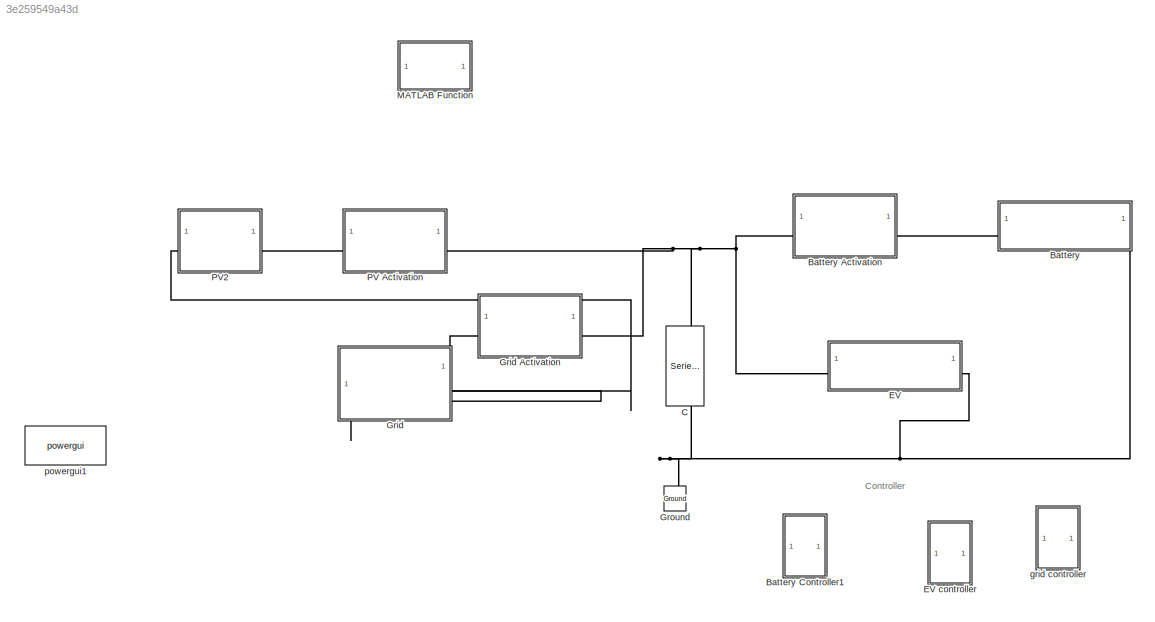
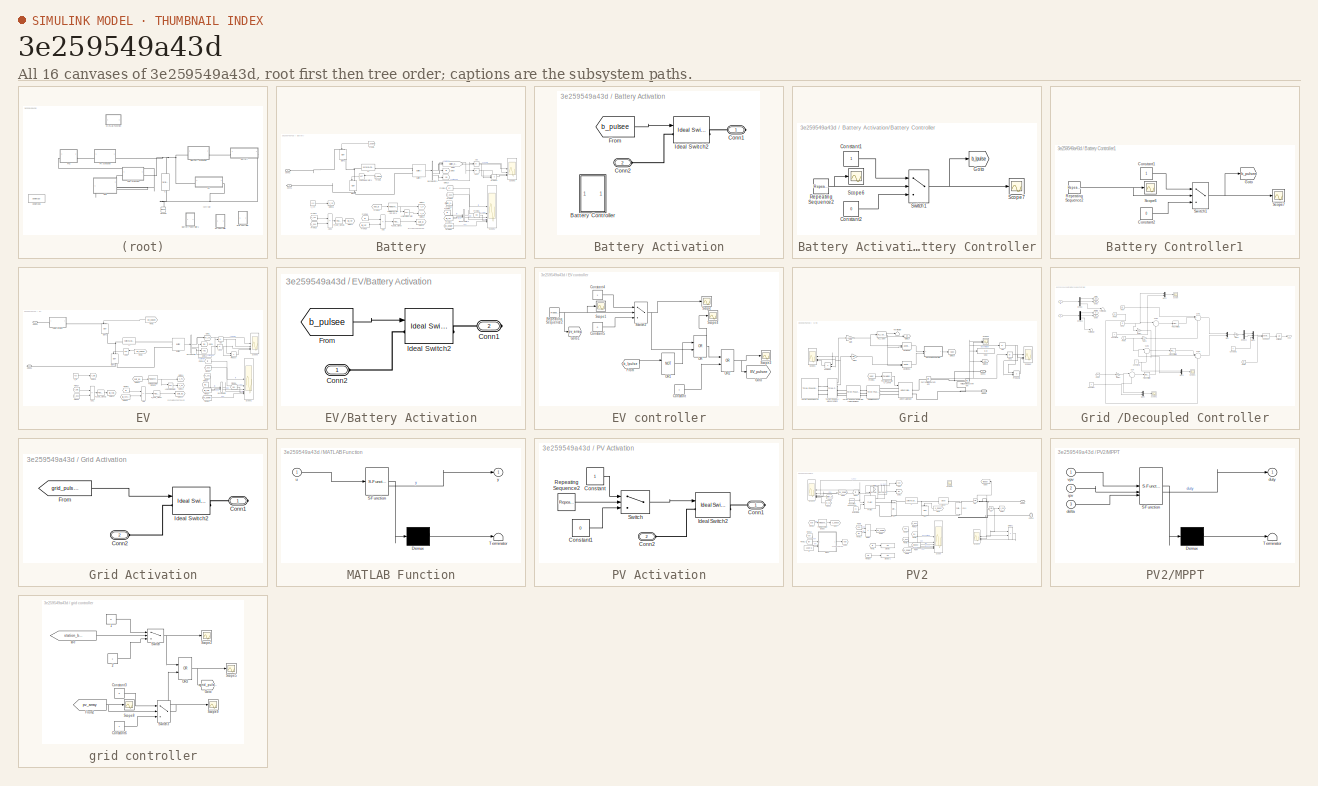
[diagram: thumbnail index - all 16 canvases of the model, root first then tree order]
MODEL slx_3e259549a43d
KIND model
CONFIG AbsTol = auto
CONFIG EnableMultiTasking = off
CONFIG FixedStep = 50e-6
CONFIG MaxStep = 1e-4
CONFIG MinStep = auto
CONFIG RelTol = 1e-3
CONFIG SampleTimeConstraint = Unconstrained
CONFIG SolverName = VariableStepDiscrete
CONFIG StartTime = 0.0
CONFIG StopTime = 10
BLOCK [SubSystem] Battery
BLOCK [SubSystem] Battery Activation
BLOCK [SubSystem] Battery Activation/Battery Controller
BLOCK [Constant] Battery Activation/Battery Controller/Constant1
BLOCK [Constant] Battery Activation/Battery Controller/Constant2
  Value = 0
BLOCK [Goto] Battery Activation/Battery Controller/Goto
  GotoTag = b_lpulse
  TagVisibility = global
BLOCK [Reference] Battery Activation/Battery Controller/Repeating Sequence2  REF=simulink/Sources/Repeating
Sequence
  SourceBlock = simulink/Sources/Repeating\nSequence
  SourceType = Repeating table
BLOCK [Scope] Battery Activation/Battery Controller/Scope6
  Floating = off
  NumInputPorts = 1
  ScopeSpecificationString = Simulink.scopes.TimeScopeBlockCfg('CurrentConfiguration', extmgr.ConfigurationSet(extmgr.Configuration('Core','General UI',true),extmgr.Configuration('Core','Source UI',true),extmgr.Configuration('Sources','WiredSimulink',true,'DataLoggingVariableName','ScopeData10'),extmgr.Configuration('Visuals','Time Domain',true,'SerializedDisplays',{struct('MinYLimReal','-123.875','MaxYLimReal','1124.875','YL...<+1498ch>
BLOCK [Scope] Battery Activation/Battery Controller/Scope7
  Floating = off
  NumInputPorts = 1
  ScopeSpecificationString = Simulink.scopes.TimeScopeBlockCfg('CurrentConfiguration', extmgr.ConfigurationSet(extmgr.Configuration('Core','General UI',true),extmgr.Configuration('Core','Source UI',true),extmgr.Configuration('Sources','WiredSimulink',true,'DataLoggingVariableName','ScopeData11'),extmgr.Configuration('Visuals','Time Domain',true,'SerializedDisplays',{struct('MinYLimReal','-0.125','MaxYLimReal','1.125','YLabelR...<+1468ch>
BLOCK [Switch] Battery Activation/Battery Controller/Switch1
  Criteria = u2 > Threshold
  InputSameDT = off
  SaturateOnIntegerOverflow = off
BLOCK [PMIOPort] Battery Activation/Conn1
  Side = Right
BLOCK [PMIOPort] Battery Activation/Conn2
  Port = 2
  Side = Left
BLOCK [From] Battery Activation/From
  GotoTag = b_pulsee
  TagVisibility = global
BLOCK [Reference] Battery Activation/Ideal Switch2  REF=spsIdealSwitchLib/Ideal Switch
  LibrarySourceBlock = sps_lib/Power Electronics/Ideal Switch
  SourceBlock = spsIdealSwitchLib/Ideal Switch
  SourceType = Ideal Switch
BLOCK [SubSystem] Battery Controller1
BLOCK [Constant] Battery Controller1/Constant1
BLOCK [Constant] Battery Controller1/Constant2
  Value = 0
BLOCK [Goto] Battery Controller1/Goto
  GotoTag = b_pulsee
  TagVisibility = global
BLOCK [Reference] Battery Controller1/Repeating Sequence2  REF=simulink/Sources/Repeating
Sequence
  SourceBlock = simulink/Sources/Repeating\nSequence
  SourceType = Repeating table
BLOCK [Scope] Battery Controller1/Scope6
  Floating = off
  NumInputPorts = 1
  ScopeSpecificationString = Simulink.scopes.TimeScopeBlockCfg('CurrentConfiguration', extmgr.ConfigurationSet(extmgr.Configuration('Core','General UI',true),extmgr.Configuration('Core','Source UI',true),extmgr.Configuration('Sources','WiredSimulink',true,'DataLoggingVariableName','ScopeData10'),extmgr.Configuration('Visuals','Time Domain',true,'SerializedDisplays',{struct('MinYLimReal','-123.875','MaxYLimReal','1124.875','YL...<+1498ch>
BLOCK [Scope] Battery Controller1/Scope7
  Floating = off
  NumInputPorts = 1
  ScopeSpecificationString = Simulink.scopes.TimeScopeBlockCfg('CurrentConfiguration', extmgr.ConfigurationSet(extmgr.Configuration('Core','General UI',true),extmgr.Configuration('Core','Source UI',true),extmgr.Configuration('Sources','WiredSimulink',true,'DataLoggingVariableName','ScopeData11'),extmgr.Configuration('Visuals','Time Domain',true,'SerializedDisplays',{struct('MinYLimReal','-0.125','MaxYLimReal','1.125','YLabelR...<+1468ch>
BLOCK [Switch] Battery Controller1/Switch1
  Criteria = u2 > Threshold
  InputSameDT = off
  SaturateOnIntegerOverflow = off
BLOCK [Abs] Battery/Abs
  SaturateOnIntegerOverflow = off
BLOCK [Abs] Battery/Abs1
  SaturateOnIntegerOverflow = off
BLOCK [Sum] Battery/Add
  Commented = on
  IconShape = rectangular
  Inputs = +-
BLOCK [Sum] Battery/Add1
  Commented = on
  IconShape = rectangular
  Inputs = +-
BLOCK [Reference] Battery/Battery  REF=spsBatteryLib/Battery
  LibrarySourceBlock = electricdrivelib/Extra Sources/Battery
  NameLocation = top
  SourceBlock = spsBatteryLib/Battery
  SourceType = Battery
BLOCK [BusCreator] Battery/Bus Creator1
  Commented = on
  DisplayOption = bar
  InheritFromInputs = on
  Inputs = 2
BLOCK [BusSelector] Battery/Bus Selector1
  OutputSignals = SOC (%),Current (A),Voltage (V)
BLOCK [PMIOPort] Battery/Conn1
  NameLocation = top
  Side = Right
BLOCK [PMIOPort] Battery/Conn2
  Port = 2
  Side = Left
BLOCK [From] Battery/From1
  GotoTag = b_pulsee
  NameLocation = top
  TagVisibility = global
BLOCK [From] Battery/From14
  Commented = on
  GotoTag = duty_B
BLOCK [From] Battery/From15
  Commented = on
  GotoTag = iB
  TagVisibility = global
BLOCK [From] Battery/From16
  Commented = on
  GotoTag = iB_ref
BLOCK [From] Battery/From17
  Commented = on
  GotoTag = v_ref
BLOCK [From] Battery/From18
  Commented = on
  GotoTag = v_bus
  TagVisibility = global
BLOCK [From] Battery/From19
  Commented = on
  GotoTag = irr
  NameLocation = top
  TagVisibility = global
BLOCK [From] Battery/From20
  Commented = on
  GotoTag = v_bus
  TagVisibility = global
BLOCK [From] Battery/From22
  Commented = on
  GotoTag = station_battery_soc
  TagVisibility = global
BLOCK [From] Battery/From23
  Commented = on
  GotoTag = iB
  TagVisibility = global
BLOCK [From] Battery/From24
  Commented = on
  GotoTag = iB_ref
BLOCK [From] Battery/From25
  Commented = on
  GotoTag = pv_power
  NameLocation = top
  TagVisibility = global
BLOCK [From] Battery/From26
  Commented = on
  GotoTag = vB
  TagVisibility = global
BLOCK [From] Battery/From3
  GotoTag = b_pulsee
  NameLocation = top
  TagVisibility = global
BLOCK [Goto] Battery/Goto1
  GotoTag = station_battery_soc
  TagVisibility = global
BLOCK [Goto] Battery/Goto10
  GotoTag = vB
  TagVisibility = global
BLOCK [Goto] Battery/Goto11
  Commented = on
  GotoTag = s_P
  NameLocation = top
BLOCK [Goto] Battery/Goto12
  Commented = on
  GotoTag = s_N
  NameLocation = top
BLOCK [Goto] Battery/Goto13
  Commented = on
  GotoTag = duty_B
BLOCK [Goto] Battery/Goto14
  Commented = on
  GotoTag = iB_ref
BLOCK [Goto] Battery/Goto15
  Commented = on
  GotoTag = v_ref
BLOCK [Goto] Battery/Goto9
  GotoTag = iB
  TagVisibility = global
BLOCK [Reference] Battery/IGBT1  REF=spsIGBTLib/IGBT
  LibrarySourceBlock = sps_lib/Power Electronics/IGBT
  NameLocation = left
  SourceBlock = spsIGBTLib/IGBT
  SourceType = IGBT
BLOCK [Reference] Battery/IGBT2  REF=spsIGBTLib/IGBT
  LibrarySourceBlock = sps_lib/Power Electronics/IGBT
  NameLocation = left
  SourceBlock = spsIGBTLib/IGBT
  SourceType = IGBT
BLOCK [Reference] Battery/L1  REF=spsSeriesRLCBranchLib/Series RLC Branch
  LibrarySourceBlock = sps_lib/Passives/Series RLC Branch
  SourceBlock = spsSeriesRLCBranchLib/Series RLC Branch
  SourceType = Series RLC Branch
BLOCK [Logic] Battery/Logical Operator
  AllPortsSameDT = off
  Commented = on
  Operator = NOT
  OutDataTypeStr = boolean
BLOCK [Logic] Battery/Logical Operator1
  AllPortsSameDT = off
  Operator = NOT
  OutDataTypeStr = boolean
BLOCK [Reference] Battery/PI_duty_signal  REF=slpidlib/PID Controller
  Commented = on
  SourceBlock = slpidlib/PID Controller
  SourceType = PID 1dof
BLOCK [Reference] Battery/PI_duty_signal1  REF=slpidlib/PID Controller
  Commented = on
  SourceBlock = slpidlib/PID Controller
  SourceType = PID 1dof
BLOCK [Reference] Battery/PWM Generator (DC-DC)1  REF=spsPWMGeneratorDCDCLib/PWM Generator
(DC-DC)
  Commented = on
  LibrarySourceBlock = sps_lib/Power Electronics/Power Electronics Control/PWM Generator\n(DC-DC)
  SourceBlock = spsPWMGeneratorDCDCLib/PWM Generator\n(DC-DC)
  SourceType = PWM Generator (DC-DC)
BLOCK [Product] Battery/Product
BLOCK [Scope] Battery/Scope1
  Commented = on
  Floating = off
  NumInputPorts = 6
  ScopeSpecificationString = Simulink.scopes.TimeScopeBlockCfg('CurrentConfiguration', extmgr.ConfigurationSet(extmgr.Configuration('Core','General UI',true,'FigureColor',[1 1 1]),extmgr.Configuration('Core','Source UI',true),extmgr.Configuration('Sources','WiredSimulink',true,'DataLoggingVariableName','ScopeData1'),extmgr.Configuration('Visuals','Time Domain',true,'SerializedDisplays',{struct('MinYLimReal','700.00000','MaxYL...<+7675ch>
BLOCK [Scope] Battery/Scope3
  Floating = off
  NumInputPorts = 4
  ScopeSpecificationString = Simulink.scopes.TimeScopeBlockCfg('CurrentConfiguration', extmgr.ConfigurationSet(extmgr.Configuration('Core','General UI',true),extmgr.Configuration('Core','Source UI',true),extmgr.Configuration('Sources','WiredSimulink',true,'DataLoggingVariableName','ScopeData6'),extmgr.Configuration('Visuals','Time Domain',true,'SerializedDisplays',{struct('MinYLimReal','49.99135','MaxYLimReal','50.07784','YLa...<+3564ch>
BLOCK [Constant] Battery/V_ref
  Commented = on
  Value = 400
BLOCK [Reference] C  REF=spsSeriesRLCBranchLib/Series RLC Branch
  LibrarySourceBlock = sps_lib/Passives/Series RLC Branch
  NameLocation = left
  SourceBlock = spsSeriesRLCBranchLib/Series RLC Branch
  SourceType = Series RLC Branch
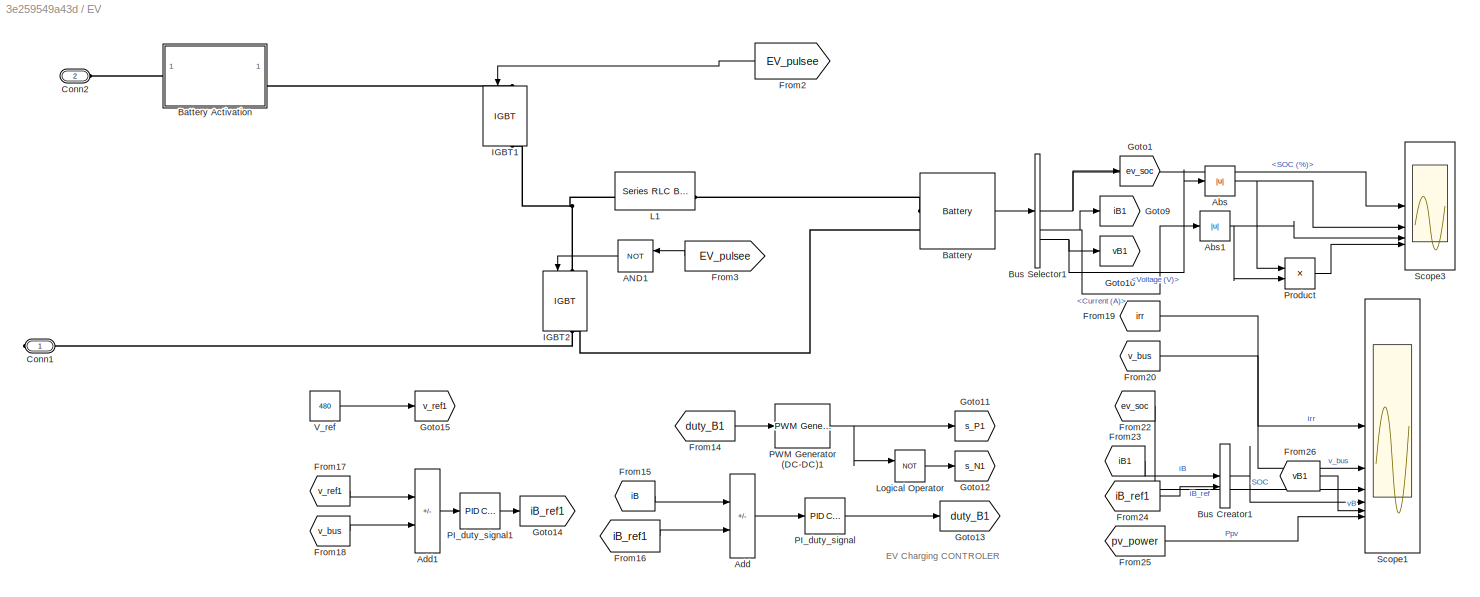
BLOCK [SubSystem] EV
BLOCK [SubSystem] EV controller
BLOCK [Constant] EV controller/Constant
BLOCK [Constant] EV controller/Constant4
BLOCK [Constant] EV controller/Constant5
  Value = 0
BLOCK [From] EV controller/From
  GotoTag = b_lpulse
  TagVisibility = global
BLOCK [Goto] EV controller/Goto
  GotoTag = EV_pulsee
  TagVisibility = global
BLOCK [Goto] EV controller/Goto1
  GotoTag = pv_array
  TagVisibility = global
BLOCK [Logic] EV controller/OR
  AllPortsSameDT = off
  IconShape = distinctive
  Operator = OR
  OutDataTypeStr = boolean
BLOCK [Logic] EV controller/OR1
  AllPortsSameDT = off
  IconShape = distinctive
  Operator = NOT
  OutDataTypeStr = boolean
BLOCK [Logic] EV controller/OR2
  AllPortsSameDT = off
  IconShape = distinctive
  Operator = OR
  OutDataTypeStr = boolean
BLOCK [Reference] EV controller/Repeating Sequence2  REF=simulink/Sources/Repeating
Sequence
  SourceBlock = simulink/Sources/Repeating\nSequence
  SourceType = Repeating table
BLOCK [Scope] EV controller/Scope
  Floating = off
  NumInputPorts = 1
  ScopeSpecificationString = Simulink.scopes.TimeScopeBlockCfg('CurrentConfiguration', extmgr.ConfigurationSet(extmgr.Configuration('Core','General UI',true),extmgr.Configuration('Core','Source UI',true),extmgr.Configuration('Sources','WiredSimulink',true,'DataLoggingVariableName','ScopeData4'),extmgr.Configuration('Visuals','Time Domain',true,'SerializedDisplays',{struct('MinYLimReal','-0.125','MaxYLimReal','1.125','YLabelRe...<+1396ch>
BLOCK [Scope] EV controller/Scope1
  Floating = off
  NumInputPorts = 1
  ScopeSpecificationString = Simulink.scopes.TimeScopeBlockCfg('CurrentConfiguration', extmgr.ConfigurationSet(extmgr.Configuration('Core','General UI',true),extmgr.Configuration('Core','Source UI',true),extmgr.Configuration('Sources','WiredSimulink',true,'DataLoggingVariableName','ScopeData5'),extmgr.Configuration('Visuals','Time Domain',true,'SerializedDisplays',{struct('MinYLimReal','-123.875','MaxYLimReal','1124.875','YLa...<+1497ch>
BLOCK [Scope] EV controller/Scope3
  Floating = off
  NumInputPorts = 1
  ScopeSpecificationString = Simulink.scopes.TimeScopeBlockCfg('CurrentConfiguration', extmgr.ConfigurationSet(extmgr.Configuration('Core','General UI',true),extmgr.Configuration('Core','Source UI',true),extmgr.Configuration('Sources','WiredSimulink',true,'DataLoggingVariableName','ScopeData7'),extmgr.Configuration('Visuals','Time Domain',true,'SerializedDisplays',{struct('MinYLimReal','0.9','MaxYLimReal','1.1','YLabelReal','...<+1441ch>
BLOCK [Scope] EV controller/Scope4
  Floating = off
  NumInputPorts = 1
  ScopeSpecificationString = Simulink.scopes.TimeScopeBlockCfg('CurrentConfiguration', extmgr.ConfigurationSet(extmgr.Configuration('Core','General UI',true),extmgr.Configuration('Core','Source UI',true),extmgr.Configuration('Sources','WiredSimulink',true,'DataLoggingVariableName','ScopeData8'),extmgr.Configuration('Visuals','Time Domain',true,'SerializedDisplays',{struct('MinYLimReal','-0.125','MaxYLimReal','1.125','YLabelRe...<+1391ch>
BLOCK [Switch] EV controller/Switch2
  InputSameDT = off
  SaturateOnIntegerOverflow = off
  Threshold = 1000
BLOCK [Logic] EV/AND1
  AllPortsSameDT = off
  IconShape = distinctive
  Operator = NOT
  OutDataTypeStr = boolean
BLOCK [Abs] EV/Abs
  SaturateOnIntegerOverflow = off
BLOCK [Abs] EV/Abs1
  SaturateOnIntegerOverflow = off
BLOCK [Sum] EV/Add
  IconShape = rectangular
  Inputs = +-
BLOCK [Sum] EV/Add1
  IconShape = rectangular
  Inputs = +-
BLOCK [Reference] EV/Battery  REF=spsBatteryLib/Battery
  LibrarySourceBlock = electricdrivelib/Extra Sources/Battery
  NameLocation = top
  SourceBlock = spsBatteryLib/Battery
  SourceType = Battery
BLOCK [SubSystem] EV/Battery Activation
BLOCK [PMIOPort] EV/Battery Activation/Conn1
  Port = 2
  Side = Right
BLOCK [PMIOPort] EV/Battery Activation/Conn2
  Side = Left
BLOCK [From] EV/Battery Activation/From
  GotoTag = b_pulsee
  TagVisibility = global
BLOCK [Reference] EV/Battery Activation/Ideal Switch2  REF=spsIdealSwitchLib/Ideal Switch
  LibrarySourceBlock = sps_lib/Power Electronics/Ideal Switch
  SourceBlock = spsIdealSwitchLib/Ideal Switch
  SourceType = Ideal Switch
BLOCK [BusCreator] EV/Bus Creator1
  DisplayOption = bar
  InheritFromInputs = on
  Inputs = 2
BLOCK [BusSelector] EV/Bus Selector1
  OutputSignals = SOC (%),Current (A),Voltage (V)
BLOCK [PMIOPort] EV/Conn1
  NameLocation = top
  Side = Right
BLOCK [PMIOPort] EV/Conn2
  Port = 2
  Side = Left
BLOCK [From] EV/From14
  GotoTag = duty_B1
BLOCK [From] EV/From15
  GotoTag = iB
  TagVisibility = global
BLOCK [From] EV/From16
  GotoTag = iB_ref1
BLOCK [From] EV/From17
  GotoTag = v_ref1
BLOCK [From] EV/From18
  GotoTag = v_bus
  TagVisibility = global
BLOCK [From] EV/From19
  GotoTag = irr
  NameLocation = top
  TagVisibility = global
BLOCK [From] EV/From2
  GotoTag = EV_pulsee
  NameLocation = top
  TagVisibility = global
BLOCK [From] EV/From20
  GotoTag = v_bus
  TagVisibility = global
BLOCK [From] EV/From22
  GotoTag = ev_soc
  TagVisibility = global
BLOCK [From] EV/From23
  GotoTag = iB1
  TagVisibility = global
BLOCK [From] EV/From24
  GotoTag = iB_ref1
BLOCK [From] EV/From25
  GotoTag = pv_power
  NameLocation = top
  TagVisibility = global
BLOCK [From] EV/From26
  GotoTag = vB1
  TagVisibility = global
BLOCK [From] EV/From3
  GotoTag = EV_pulsee
  NameLocation = top
  TagVisibility = global
BLOCK [Goto] EV/Goto1
  GotoTag = ev_soc
  TagVisibility = global
BLOCK [Goto] EV/Goto10
  GotoTag = vB1
  TagVisibility = global
BLOCK [Goto] EV/Goto11
  GotoTag = s_P1
  NameLocation = top
BLOCK [Goto] EV/Goto12
  GotoTag = s_N1
  NameLocation = top
BLOCK [Goto] EV/Goto13
  GotoTag = duty_B1
BLOCK [Goto] EV/Goto14
  GotoTag = iB_ref1
BLOCK [Goto] EV/Goto15
  GotoTag = v_ref1
BLOCK [Goto] EV/Goto9
  GotoTag = iB1
  TagVisibility = global
BLOCK [Reference] EV/IGBT1  REF=spsIGBTLib/IGBT
  LibrarySourceBlock = sps_lib/Power Electronics/IGBT
  NameLocation = left
  SourceBlock = spsIGBTLib/IGBT
  SourceType = IGBT
BLOCK [Reference] EV/IGBT2  REF=spsIGBTLib/IGBT
  LibrarySourceBlock = sps_lib/Power Electronics/IGBT
  NameLocation = left
  SourceBlock = spsIGBTLib/IGBT
  SourceType = IGBT
BLOCK [Reference] EV/L1  REF=spsSeriesRLCBranchLib/Series RLC Branch
  LibrarySourceBlock = sps_lib/Passives/Series RLC Branch
  SourceBlock = spsSeriesRLCBranchLib/Series RLC Branch
  SourceType = Series RLC Branch
BLOCK [Logic] EV/Logical Operator
  AllPortsSameDT = off
  Operator = NOT
  OutDataTypeStr = boolean
BLOCK [Reference] EV/PI_duty_signal  REF=slpidlib/PID Controller
  SourceBlock = slpidlib/PID Controller
  SourceType = PID 1dof
BLOCK [Reference] EV/PI_duty_signal1  REF=slpidlib/PID Controller
  SourceBlock = slpidlib/PID Controller
  SourceType = PID 1dof
BLOCK [Reference] EV/PWM Generator (DC-DC)1  REF=spsPWMGeneratorDCDCLib/PWM Generator
(DC-DC)
  LibrarySourceBlock = sps_lib/Power Electronics/Power Electronics Control/PWM Generator\n(DC-DC)
  SourceBlock = spsPWMGeneratorDCDCLib/PWM Generator\n(DC-DC)
  SourceType = PWM Generator (DC-DC)
BLOCK [Product] EV/Product
BLOCK [Scope] EV/Scope1
  Floating = off
  NumInputPorts = 6
  ScopeSpecificationString = Simulink.scopes.TimeScopeBlockCfg('CurrentConfiguration', extmgr.ConfigurationSet(extmgr.Configuration('Core','General UI',true,'FigureColor',[1 1 1]),extmgr.Configuration('Core','Source UI',true),extmgr.Configuration('Sources','WiredSimulink',true,'DataLoggingVariableName','ScopeData1'),extmgr.Configuration('Visuals','Time Domain',true,'SerializedDisplays',{struct('MinYLimReal','700.00000','MaxYL...<+7664ch>
BLOCK [Scope] EV/Scope3
  Floating = off
  NumInputPorts = 4
  ScopeSpecificationString = Simulink.scopes.TimeScopeBlockCfg('CurrentConfiguration', extmgr.ConfigurationSet(extmgr.Configuration('Core','General UI',true),extmgr.Configuration('Core','Source UI',true),extmgr.Configuration('Sources','WiredSimulink',true,'DataLoggingVariableName','ScopeData7'),extmgr.Configuration('Visuals','Time Domain',true,'SerializedDisplays',{struct('MinYLimReal','79.96754','MaxYLimReal','80.2921','YLab...<+3563ch>
BLOCK [Constant] EV/V_ref
  Value = 480
BLOCK [SubSystem] Grid 
BLOCK [Abs] Grid /Abs
  SaturateOnIntegerOverflow = off
BLOCK [Abs] Grid /Abs1
  SaturateOnIntegerOverflow = off
BLOCK [PMIOPort] Grid /Conn1
  Side = Right
BLOCK [PMIOPort] Grid /Conn2
  Port = 2
  Side = Right
BLOCK [Reference] Grid /Current Measurement  REF=spsCurrentMeasurementLib/Current Measurement
  LibrarySourceBlock = sps_lib/Sensors and Measurements/Current Measurement
  SourceBlock = spsCurrentMeasurementLib/Current Measurement
  SourceType = Current Measurement
  UserDataPersistent = on
BLOCK [SubSystem] Grid /Decoupled Controller
BLOCK [Constant] Grid /Decoupled Controller/Constant
BLOCK [Constant] Grid /Decoupled Controller/Constant1
  Value = 0
BLOCK [Constant] Grid /Decoupled Controller/Constant2
  Value = 0
BLOCK [Constant] Grid /Decoupled Controller/Constant3
BLOCK [Demux] Grid /Decoupled Controller/Demux
  Outputs = 3
BLOCK [Demux] Grid /Decoupled Controller/Demux1
  Outputs = 3
BLOCK [Demux] Grid /Decoupled Controller/Demux2
  Outputs = 2
BLOCK [Inport] Grid /Decoupled Controller/E
BLOCK [From] Grid /Decoupled Controller/From
  GotoTag = Ed
  TagVisibility = global
BLOCK [From] Grid /Decoupled Controller/From1
  GotoTag = Eq
  TagVisibility = global
BLOCK [From] Grid /Decoupled Controller/From2
  GotoTag = Id
  TagVisibility = global
BLOCK [From] Grid /Decoupled Controller/From3
  GotoTag = Iq
  TagVisibility = global
BLOCK [From] Grid /Decoupled Controller/From4
  GotoTag = Vdc
  TagVisibility = global
BLOCK [From] Grid /Decoupled Controller/From5
  GotoTag = wt
  TagVisibility = global
BLOCK [Gain] Grid /Decoupled Controller/Gain1
  Gain = 0.69
BLOCK [Gain] Grid /Decoupled Controller/Gain2
  Gain = 0.69
BLOCK [Gain] Grid /Decoupled Controller/Gain3
  Gain = 350*sqrt(2)/sqrt(3)
BLOCK [Gain] Grid /Decoupled Controller/Gain4
  Gain = 1/600
BLOCK [Goto] Grid /Decoupled Controller/Goto
  GotoTag = Ed
  TagVisibility = global
BLOCK [Goto] Grid /Decoupled Controller/Goto3
  GotoTag = Eq
  TagVisibility = global
BLOCK [Goto] Grid /Decoupled Controller/Goto5
  GotoTag = Id
  TagVisibility = global
BLOCK [Goto] Grid /Decoupled Controller/Goto6
  GotoTag = Iq
  TagVisibility = global
BLOCK [Inport] Grid /Decoupled Controller/I
  Port = 2
BLOCK [Mux] Grid /Decoupled Controller/Mux
  DisplayOption = bar
  Inputs = 2
BLOCK [Mux] Grid /Decoupled Controller/Mux1
  DisplayOption = bar
  Inputs = 3
BLOCK [Mux] Grid /Decoupled Controller/Mux2
  DisplayOption = bar
  Inputs = 2
BLOCK [Mux] Grid /Decoupled Controller/Mux3
  DisplayOption = bar
  Inputs = 2
BLOCK [Mux] Grid /Decoupled Controller/Mux4
  DisplayOption = bar
  Inputs = 2
BLOCK [Reference] Grid /Decoupled Controller/PID Controller  REF=slpidlib/PID Controller
  SourceBlock = slpidlib/PID Controller
  SourceType = PID 1dof
BLOCK [Reference] Grid /Decoupled Controller/PID Controller1  REF=slpidlib/PID Controller
  SourceBlock = slpidlib/PID Controller
  SourceType = PID 1dof
BLOCK [Reference] Grid /Decoupled Controller/PID Controller2  REF=slpidlib/PID Controller
  SourceBlock = slpidlib/PID Controller
  SourceType = PID 1dof
BLOCK [Scope] Grid /Decoupled Controller/Scope
  Floating = off
  NumInputPorts = 1
  ScopeSpecificationString = Simulink.scopes.TimeScopeBlockCfg('CurrentConfiguration', extmgr.ConfigurationSet(extmgr.Configuration('Core','General UI',true),extmgr.Configuration('Core','Source UI',true),extmgr.Configuration('Sources','WiredSimulink',true,'DataLoggingVariableName','ScopeData1'),extmgr.Configuration('Visuals','Time Domain',true,'SerializedDisplays',{struct('MinYLimReal','-0.89036','MaxYLimReal','2.39036','YLab...<+1489ch>
BLOCK [Scope] Grid /Decoupled Controller/Scope1
  Floating = off
  NumInputPorts = 1
  ScopeSpecificationString = Simulink.scopes.TimeScopeBlockCfg('CurrentConfiguration', extmgr.ConfigurationSet(extmgr.Configuration('Core','General UI',true),extmgr.Configuration('Core','Source UI',true),extmgr.Configuration('Sources','WiredSimulink',true,'DataLoggingVariableName','ScopeData2'),extmgr.Configuration('Visuals','Time Domain',true,'SerializedDisplays',{struct('MinYLimReal','-2.24483','MaxYLimReal','0.36977','YLab...<+1477ch>
BLOCK [Scope] Grid /Decoupled Controller/Scope2
  Floating = off
  NumInputPorts = 1
  ScopeSpecificationString = Simulink.scopes.TimeScopeBlockCfg('CurrentConfiguration', extmgr.ConfigurationSet(extmgr.Configuration('Core','General UI',true),extmgr.Configuration('Core','Source UI',true),extmgr.Configuration('Sources','WiredSimulink',true,'DataLoggingVariableName','ScopeData3'),extmgr.Configuration('Visuals','Time Domain',true,'SerializedDisplays',{struct('MinYLimReal','-0.125','MaxYLimReal','1.125','YLabelRe...<+1461ch>
BLOCK [Sum] Grid /Decoupled Controller/Sum
  Inputs = |-+
BLOCK [Sum] Grid /Decoupled Controller/Sum1
  Inputs = |+-+
BLOCK [Sum] Grid /Decoupled Controller/Sum2
  Inputs = |-+
BLOCK [Sum] Grid /Decoupled Controller/Sum3
  Inputs = |-+
BLOCK [Sum] Grid /Decoupled Controller/Sum4
  Inputs = |--+
BLOCK [Terminator] Grid /Decoupled Controller/Terminator
BLOCK [Terminator] Grid /Decoupled Controller/Terminator1
BLOCK [UnitDelay] Grid /Decoupled Controller/Unit Delay
  HasFrameUpgradeWarning = on
  SampleTime = 50e-6
BLOCK [Outport] Grid /Decoupled Controller/Vout
BLOCK [Reference] Grid /Decoupled Controller/dq0 to abc  REF=spsdq0toabcLib/dq0 to abc
  LibrarySourceBlock = sps_lib/Control/dq0 to abc
  SourceBlock = spsdq0toabcLib/dq0 to abc
  SourceType = dq0 to abc Transformation
BLOCK [From] Grid /From21
  GotoTag = Vabc
BLOCK [Gain] Grid /Gain
  Gain = 1/(11e3*sqrt(2)/sqrt(3))
BLOCK [Gain] Grid /Gain1
  Gain = sqrt(3)*11e3/sqrt(2)/100e3
BLOCK [Goto] Grid /Goto16
  GotoTag = Vabc
BLOCK [Goto] Grid /Goto17
  GotoTag = wt
  TagVisibility = global
BLOCK [Goto] Grid /Goto18
  GotoTag = Vdc
  TagVisibility = global
BLOCK [Reference] Grid /Line Impedance  REF=spsThreePhaseParallelRLCBranchLib/Three-Phase
Parallel RLC Branch
  AttributesFormatString = \n
  LibrarySourceBlock = sps_lib/Passives/Three-Phase\nParallel RLC Branch
  SourceBlock = spsThreePhaseParallelRLCBranchLib/Three-Phase\nParallel RLC Branch
  SourceType = Three-Phase Parallel RLC Branch
BLOCK [Reference] Grid /PLL (3ph)  REF=spsPLL3phLib/PLL
(3ph)
  LibrarySourceBlock = sps_lib/Control/PLL\n(3ph)
  SourceBlock = spsPLL3phLib/PLL\n(3ph)
  SourceType = PLL (3ph)
BLOCK [Reference] Grid /PWM Generator (2-Level)   REF=spsPWMGenerator2LevelLib/PWM Generator
(2-Level)
  LibrarySourceBlock = sps_lib/Power Electronics/Power Electronics Control/PWM Generator\n(2-Level)
  SourceBlock = spsPWMGenerator2LevelLib/PWM Generator\n(2-Level)
  SourceType = PWM Generator (2-Level)
BLOCK [Product] Grid /Product
BLOCK [Product] Grid /Product1
BLOCK [Scope] Grid /Scope1
  Floating = off
  NumInputPorts = 3
  ScopeSpecificationString = Simulink.scopes.TimeScopeBlockCfg('CurrentConfiguration', extmgr.ConfigurationSet(extmgr.Configuration('Core','General UI',true),extmgr.Configuration('Core','Source UI',true),extmgr.Configuration('Sources','WiredSimulink',true,'DataLoggingVariableName','ScopeData5'),extmgr.Configuration('Visuals','Time Domain',true,'SerializedDisplays',{struct('MinYLimReal','-104671.7008','MaxYLimReal','106320.957...<+3096ch>
BLOCK [Scope] Grid /Scope2
  Floating = off
  NumInputPorts = 3
  ScopeSpecificationString = Simulink.scopes.TimeScopeBlockCfg('CurrentConfiguration', extmgr.ConfigurationSet(extmgr.Configuration('Core','General UI',true),extmgr.Configuration('Core','Source UI',true),extmgr.Configuration('Sources','WiredSimulink',true,'DataLoggingVariableName','ScopeData1'),extmgr.Configuration('Visuals','Time Domain',true,'SerializedDisplays',{struct('MinYLimReal','-3018.96608','MaxYLimReal','27170.69472...<+2860ch>
BLOCK [Scope] Grid /Scope3
  Floating = off
  NumInputPorts = 2
  ScopeSpecificationString = Simulink.scopes.TimeScopeBlockCfg('CurrentConfiguration', extmgr.ConfigurationSet(extmgr.Configuration('Core','General UI',true,'FigureColor',[1 1 1]),extmgr.Configuration('Core','Source UI',true),extmgr.Configuration('Sources','WiredSimulink',true,'DataLoggingVariableName','ScopeData1'),extmgr.Configuration('Visuals','Time Domain',true,'SerializedDisplays',{struct('MinYLimReal','-3042.40854','Max...<+2373ch>
BLOCK [Terminator] Grid /Terminator
BLOCK [Reference] Grid /Three-Phase Source   REF=spsThreePhaseSourceLib/Three-Phase Source
  LibrarySourceBlock = sps_lib/Sources/Three-Phase Source
  SourceBlock = spsThreePhaseSourceLib/Three-Phase Source
  SourceType = Three-Phase Source
BLOCK [Reference] Grid /Three-Phase Transformer (Two Windings)   REF=spsThreePhaseTransformerTwoWindingsLib/Three-Phase
Transformer
(Two Windings)
  LibrarySourceBlock = sps_lib/Power Grid Elements/Three-Phase\nTransformer\n(Two Windings)
  SourceBlock = spsThreePhaseTransformerTwoWindingsLib/Three-Phase\nTransformer\n(Two Windings)
  SourceType = Three-Phase Transformer (Two Windings)
BLOCK [Reference] Grid /Three-Phase V-I Measurement   REF=spsThreePhaseVIMeasurementLib/Three-Phase
V-I Measurement
  LibrarySourceBlock = sps_lib/Sensors and Measurements/Three-Phase\nV-I Measurement
  SourceBlock = spsThreePhaseVIMeasurementLib/Three-Phase\nV-I Measurement
  SourceType = Three-Phase VI Measurement
BLOCK [Reference] Grid /Universal Bridge   REF=spsUniversalBridgeLib/Universal Bridge
  LibrarySourceBlock = sps_lib/Power Electronics/Universal Bridge
  SourceBlock = spsUniversalBridgeLib/Universal Bridge
  SourceType = Universal Bridge
BLOCK [Reference] Grid /Voltage Measurement  REF=spsVoltageMeasurementLib/Voltage Measurement
  LibrarySourceBlock = sps_lib/Sensors and Measurements/Voltage Measurement
  SourceBlock = spsVoltageMeasurementLib/Voltage Measurement
  SourceType = Voltage Measurement
  UserDataPersistent = on
BLOCK [Display] Grid /Vout
  Decimation = 1
BLOCK [Reference] Grid /abc to dq0  REF=spsabctodq0Lib/abc to dq0
  LibrarySourceBlock = sps_lib/Control/abc to dq0
  SourceBlock = spsabctodq0Lib/abc to dq0
  SourceType = abc to dq0 Transformation
BLOCK [Reference] Grid /abc to dq1  REF=spsabctodq0Lib/abc to dq0
  LibrarySourceBlock = sps_lib/Control/abc to dq0
  SourceBlock = spsabctodq0Lib/abc to dq0
  SourceType = abc to dq0 Transformation
BLOCK [SubSystem] Grid Activation
BLOCK [PMIOPort] Grid Activation/Conn1
  Side = Right
BLOCK [PMIOPort] Grid Activation/Conn2
  Port = 2
  Side = Left
BLOCK [From] Grid Activation/From
  GotoTag = grid_pulsee
  TagVisibility = global
BLOCK [Reference] Grid Activation/Ideal Switch2  REF=spsIdealSwitchLib/Ideal Switch
  LibrarySourceBlock = sps_lib/Power Electronics/Ideal Switch
  SourceBlock = spsIdealSwitchLib/Ideal Switch
  SourceType = Ideal Switch
BLOCK [Reference] Ground  REF=spsGroundLib/Ground
  LibrarySourceBlock = sps_lib/Utilities/Ground
  NameLocation = right
  SourceBlock = spsGroundLib/Ground
  SourceType = Ground
BLOCK [SubSystem] MATLAB Function
  ErrorFcn = Stateflow.Translate.translate
  LibrarySourceBlock = simulink/User-Defined\nFunctions/MATLAB Function
  PermitHierarchicalResolution = ExplicitOnly
  SFBlockType = MATLAB Function
  TreatAsAtomicUnit = on
BLOCK [Demux] MATLAB Function/ Demux 
  Outputs = 1
BLOCK [S-Function] MATLAB Function/ SFunction 
  EnableBusSupport = off
  FunctionName = sf_sfun
  PortCounts = [1 2]
  SFcnIsStateOwnerBlock = off
  SFunctionDeploymentMode = off
  Tag = Stateflow S-Function 2
BLOCK [Terminator] MATLAB Function/ Terminator 
BLOCK [Inport] MATLAB Function/u
BLOCK [Outport] MATLAB Function/y
BLOCK [SubSystem] PV Activation
BLOCK [PMIOPort] PV Activation/Conn1
  Side = Right
BLOCK [PMIOPort] PV Activation/Conn2
  Port = 2
  Side = Left
BLOCK [Constant] PV Activation/Constant
BLOCK [Constant] PV Activation/Constant1
  Value = 0
BLOCK [Reference] PV Activation/Ideal Switch2  REF=spsIdealSwitchLib/Ideal Switch
  LibrarySourceBlock = sps_lib/Power Electronics/Ideal Switch
  SourceBlock = spsIdealSwitchLib/Ideal Switch
  SourceType = Ideal Switch
BLOCK [Reference] PV Activation/Repeating Sequence2  REF=simulink/Sources/Repeating
Sequence
  SourceBlock = simulink/Sources/Repeating\nSequence
  SourceType = Repeating table
BLOCK [Switch] PV Activation/Switch
  Criteria = u2 > Threshold
  InputSameDT = off
  SaturateOnIntegerOverflow = off
  Threshold = 10
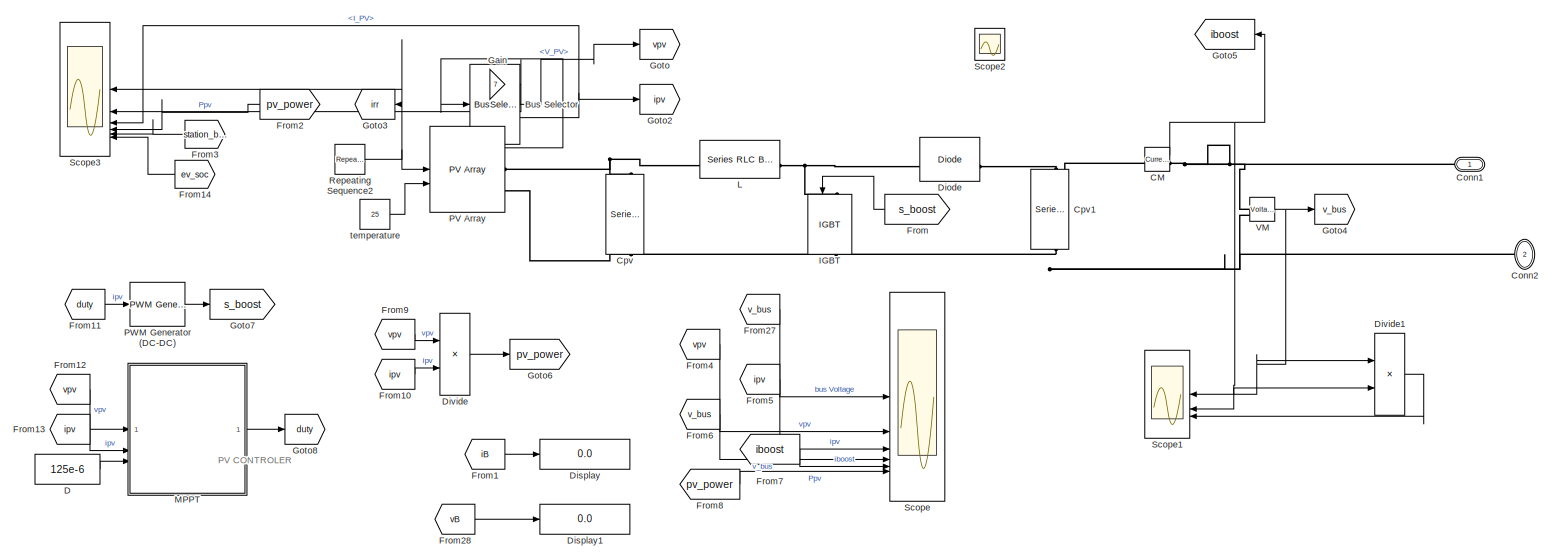
[diagram: PV2 - part 1/1, most of the canvas]
BLOCK [SubSystem] PV2
BLOCK [BusSelector] PV2/Bus Selector
  OutputSignals = V_PV,I_PV
BLOCK [Reference] PV2/CM  REF=spsCurrentMeasurementLib/Current Measurement
  LibrarySourceBlock = sps_lib/Sensors and Measurements/Current Measurement
  SourceBlock = spsCurrentMeasurementLib/Current Measurement
  SourceType = Current Measurement
  UserDataPersistent = on
BLOCK [PMIOPort] PV2/Conn1
  Side = Right
BLOCK [PMIOPort] PV2/Conn2
  NameLocation = top
  Port = 2
  Side = Left
BLOCK [Reference] PV2/Cpv  REF=spsSeriesRLCBranchLib/Series RLC Branch
  LibrarySourceBlock = sps_lib/Passives/Series RLC Branch
  NameLocation = left
  SourceBlock = spsSeriesRLCBranchLib/Series RLC Branch
  SourceType = Series RLC Branch
BLOCK [Reference] PV2/Cpv1  REF=spsSeriesRLCBranchLib/Series RLC Branch
  LibrarySourceBlock = sps_lib/Passives/Series RLC Branch
  NameLocation = left
  SourceBlock = spsSeriesRLCBranchLib/Series RLC Branch
  SourceType = Series RLC Branch
BLOCK [Constant] PV2/D
  Value = 125e-6
BLOCK [Reference] PV2/Diode  REF=spsDiodeLib/Diode
  LibrarySourceBlock = sps_lib/Power Electronics/Diode
  SourceBlock = spsDiodeLib/Diode
  SourceType = Diode
BLOCK [Display] PV2/Display
  Decimation = 1
BLOCK [Display] PV2/Display1
  Decimation = 1
BLOCK [Product] PV2/Divide
  Inputs = **
BLOCK [Product] PV2/Divide1
  Inputs = **
BLOCK [From] PV2/From
  GotoTag = s_boost
  NameLocation = top
  TagVisibility = global
BLOCK [From] PV2/From1
  GotoTag = iB
  TagVisibility = global
BLOCK [From] PV2/From10
  GotoTag = ipv
  TagVisibility = global
BLOCK [From] PV2/From11
  GotoTag = duty
  TagVisibility = global
BLOCK [From] PV2/From12
  GotoTag = vpv
  TagVisibility = global
BLOCK [From] PV2/From13
  GotoTag = ipv
  TagVisibility = global
BLOCK [From] PV2/From14
  GotoTag = ev_soc
  TagVisibility = global
BLOCK [From] PV2/From2
  GotoTag = pv_power
  NameLocation = top
  TagVisibility = global
BLOCK [From] PV2/From27
  GotoTag = v_bus
  TagVisibility = global
BLOCK [From] PV2/From28
  GotoTag = vB
  TagVisibility = global
BLOCK [From] PV2/From3
  GotoTag = station_battery_soc
  TagVisibility = global
BLOCK [From] PV2/From4
  GotoTag = vpv
  TagVisibility = global
BLOCK [From] PV2/From5
  GotoTag = ipv
  TagVisibility = global
BLOCK [From] PV2/From6
  GotoTag = v_bus
  TagVisibility = global
BLOCK [From] PV2/From7
  GotoTag = iboost
  NameLocation = top
  TagVisibility = global
BLOCK [From] PV2/From8
  GotoTag = pv_power
  NameLocation = top
  TagVisibility = global
BLOCK [From] PV2/From9
  GotoTag = vpv
  TagVisibility = global
BLOCK [Gain] PV2/Gain
  Gain = 7
BLOCK [Goto] PV2/Goto
  GotoTag = vpv
  TagVisibility = global
BLOCK [Goto] PV2/Goto2
  GotoTag = ipv
  TagVisibility = global
BLOCK [Goto] PV2/Goto3
  GotoTag = irr
  NameLocation = top
  TagVisibility = global
BLOCK [Goto] PV2/Goto4
  GotoTag = v_bus
  TagVisibility = global
BLOCK [Goto] PV2/Goto5
  GotoTag = iboost
  NameLocation = top
  TagVisibility = global
BLOCK [Goto] PV2/Goto6
  GotoTag = pv_power
  TagVisibility = global
BLOCK [Goto] PV2/Goto7
  GotoTag = s_boost
  NameLocation = top
  TagVisibility = global
BLOCK [Goto] PV2/Goto8
  GotoTag = duty
  TagVisibility = global
BLOCK [Reference] PV2/IGBT  REF=spsIGBTLib/IGBT
  LibrarySourceBlock = sps_lib/Power Electronics/IGBT
  NameLocation = left
  SourceBlock = spsIGBTLib/IGBT
  SourceType = IGBT
BLOCK [Reference] PV2/L  REF=spsSeriesRLCBranchLib/Series RLC Branch
  LibrarySourceBlock = sps_lib/Passives/Series RLC Branch
  SourceBlock = spsSeriesRLCBranchLib/Series RLC Branch
  SourceType = Series RLC Branch
BLOCK [SubSystem] PV2/MPPT
  ErrorFcn = Stateflow.Translate.translate
  PermitHierarchicalResolution = ExplicitOnly
  SFBlockType = MATLAB Function
  TreatAsAtomicUnit = on
BLOCK [Demux] PV2/MPPT/ Demux 
  Outputs = 1
BLOCK [S-Function] PV2/MPPT/ SFunction 
  EnableBusSupport = on
  FunctionName = sf_sfun
  PortCounts = [3 2]
  SFcnIsStateOwnerBlock = off
  SFunctionDeploymentMode = off
  Tag = Stateflow S-Function 5
BLOCK [Terminator] PV2/MPPT/ Terminator 
BLOCK [Inport] PV2/MPPT/delta
  Port = 3
BLOCK [Outport] PV2/MPPT/duty
BLOCK [Inport] PV2/MPPT/ipv
  Port = 2
BLOCK [Inport] PV2/MPPT/vpv
BLOCK [Reference] PV2/PV Array  REF=spsPVArrayLib/PV Array
  LibrarySourceBlock = sps_lib/Sources/PV Array
  SourceBlock = spsPVArrayLib/PV Array
  SourceType = PV array
BLOCK [Reference] PV2/PWM Generator (DC-DC)  REF=spsPWMGeneratorDCDCLib/PWM Generator
(DC-DC)
  LibrarySourceBlock = sps_lib/Power Electronics/Power Electronics Control/PWM Generator\n(DC-DC)
  SourceBlock = spsPWMGeneratorDCDCLib/PWM Generator\n(DC-DC)
  SourceType = PWM Generator (DC-DC)
BLOCK [Reference] PV2/Repeating Sequence2  REF=simulink/Sources/Repeating
Sequence
  SourceBlock = simulink/Sources/Repeating\nSequence
  SourceType = Repeating table
BLOCK [Scope] PV2/Scope
  Floating = off
  NumInputPorts = 6
  ScopeSpecificationString = Simulink.scopes.TimeScopeBlockCfg('CurrentConfiguration', extmgr.ConfigurationSet(extmgr.Configuration('Core','General UI',true,'FigureColor',[1 1 1]),extmgr.Configuration('Core','Source UI',true),extmgr.Configuration('Sources','WiredSimulink',true),extmgr.Configuration('Visuals','Time Domain',true,'SerializedDisplays',{struct('MinYLimReal','-53.44928','MaxYLimReal','481.2388','YLabelReal','','Min...<+7034ch>
BLOCK [Scope] PV2/Scope1
  Floating = off
  NumInputPorts = 3
  ScopeSpecificationString = Simulink.scopes.TimeScopeBlockCfg('CurrentConfiguration', extmgr.ConfigurationSet(extmgr.Configuration('Core','General UI',true),extmgr.Configuration('Core','Source UI',true),extmgr.Configuration('Sources','WiredSimulink',true,'DataLoggingVariableName','ScopeData4'),extmgr.Configuration('Visuals','Time Domain',true,'SerializedDisplays',{struct('MinYLimReal','-92.37725','MaxYLimReal','234.62035','Y...<+2825ch>
BLOCK [Scope] PV2/Scope2
  Floating = off
  NumInputPorts = 1
  ScopeSpecificationString = Simulink.scopes.TimeScopeBlockCfg('CurrentConfiguration', extmgr.ConfigurationSet(extmgr.Configuration('Core','General UI',true),extmgr.Configuration('Core','Source UI',true),extmgr.Configuration('Sources','WiredSimulink',true,'DataLoggingVariableName','ScopeData1'),extmgr.Configuration('Visuals','Time Domain',true,'SerializedDisplays',{struct('MinYLimReal','-186.43502','MaxYLimReal','395.09925','...<+1446ch>
BLOCK [Scope] PV2/Scope3
  Floating = off
  NumInputPorts = 6
  ScopeSpecificationString = Simulink.scopes.TimeScopeBlockCfg('CurrentConfiguration', extmgr.ConfigurationSet(extmgr.Configuration('Core','General UI',true),extmgr.Configuration('Core','Source UI',true),extmgr.Configuration('Sources','WiredSimulink',true,'DataLoggingVariableName','ScopeData3'),extmgr.Configuration('Visuals','Time Domain',true,'SerializedDisplays',{struct('MinYLimReal','-125.00000','MaxYLimReal','1125.00000',...<+4955ch>
BLOCK [Reference] PV2/VM  REF=spsVoltageMeasurementLib/Voltage Measurement
  LibrarySourceBlock = sps_lib/Sensors and Measurements/Voltage Measurement
  SourceBlock = spsVoltageMeasurementLib/Voltage Measurement
  SourceType = Voltage Measurement
  UserDataPersistent = on
BLOCK [Constant] PV2/temperature
  Value = 25
BLOCK [SubSystem] grid controller
BLOCK [Constant] grid controller/1
  Value = 0
BLOCK [Constant] grid controller/2
BLOCK [Constant] grid controller/Constant3
  Value = 0
BLOCK [Constant] grid controller/Constant6
BLOCK [From] grid controller/From2
  GotoTag = pv_array
  TagVisibility = global
BLOCK [Goto] grid controller/Goto
  GotoTag = grid_pulsee
  TagVisibility = global
BLOCK [Logic] grid controller/OR3
  AllPortsSameDT = off
  IconShape = distinctive
  Operator = OR
  OutDataTypeStr = boolean
BLOCK [Scope] grid controller/Scope2
  Floating = off
  NumInputPorts = 1
  ScopeSpecificationString = Simulink.scopes.TimeScopeBlockCfg('CurrentConfiguration', extmgr.ConfigurationSet(extmgr.Configuration('Core','General UI',true),extmgr.Configuration('Core','Source UI',true),extmgr.Configuration('Sources','WiredSimulink',true,'DataLoggingVariableName','ScopeData6'),extmgr.Configuration('Visuals','Time Domain',true,'SerializedDisplays',{struct('MinYLimReal','-0.125','MaxYLimReal','1.125','YLabelRe...<+1501ch>
BLOCK [Scope] grid controller/Scope5
  Floating = off
  NumInputPorts = 1
  ScopeSpecificationString = Simulink.scopes.TimeScopeBlockCfg('CurrentConfiguration', extmgr.ConfigurationSet(extmgr.Configuration('Core','General UI',true),extmgr.Configuration('Core','Source UI',true),extmgr.Configuration('Sources','WiredSimulink',true,'DataLoggingVariableName','ScopeData9'),extmgr.Configuration('Visuals','Time Domain',true,'SerializedDisplays',{struct('MinYLimReal','-0.125','MaxYLimReal','1.125','YLabelRe...<+1498ch>
BLOCK [Scope] grid controller/Scope8
  Floating = off
  NumInputPorts = 1
  ScopeSpecificationString = Simulink.scopes.TimeScopeBlockCfg('CurrentConfiguration', extmgr.ConfigurationSet(extmgr.Configuration('Core','General UI',true),extmgr.Configuration('Core','Source UI',true),extmgr.Configuration('Sources','WiredSimulink',true,'DataLoggingVariableName','ScopeData12'),extmgr.Configuration('Visuals','Time Domain',true,'SerializedDisplays',{struct('MinYLimReal','-123.875','MaxYLimReal','1124.875','YL...<+1498ch>
BLOCK [Scope] grid controller/Scope9
  Floating = off
  NumInputPorts = 1
  ScopeSpecificationString = Simulink.scopes.TimeScopeBlockCfg('CurrentConfiguration', extmgr.ConfigurationSet(extmgr.Configuration('Core','General UI',true),extmgr.Configuration('Core','Source UI',true),extmgr.Configuration('Sources','WiredSimulink',true,'DataLoggingVariableName','ScopeData13'),extmgr.Configuration('Visuals','Time Domain',true,'SerializedDisplays',{struct('MinYLimReal','-1.00000','MaxYLimReal','1.00000','YLa...<+1515ch>
BLOCK [Switch] grid controller/Switch
  Criteria = u2 > Threshold
  InputSameDT = off
  SaturateOnIntegerOverflow = off
  Threshold = 49
BLOCK [Switch] grid controller/Switch3
  Criteria = u2 > Threshold
  InputSameDT = off
  SaturateOnIntegerOverflow = off
BLOCK [From] grid controller/soc
  GotoTag = station_battery_soc
  TagVisibility = global
BLOCK [Reference] powergui1  REF=sps_lib/powergui
  Priority = 1
  SourceBlock = sps_lib/powergui
  SourceType = PSB option menu block
ANNOTATION (root): Controller
ANNOTATION Battery: BATTERY CONTROLER
ANNOTATION EV: EV Charging CONTROLER
ANNOTATION PV2: PV CONTROLER
LINE Battery Activation/Battery Controller/Constant1:1 -> Battery Activation/Battery Controller/Switch1:1
LINE Battery Activation/Battery Controller/Constant2:1 -> Battery Activation/Battery Controller/Switch1:3
NET Battery Activation/Battery Controller/Repeating Sequence2:1 -> Battery Activation/Battery Controller/Scope6:1, Battery Activation/Battery Controller/Switch1:2
NET Battery Activation/Battery Controller/Switch1:1 -> Battery Activation/Battery Controller/Goto:1, Battery Activation/Battery Controller/Scope7:1
LINE Battery Activation/From:1 -> Battery Activation/Ideal Switch2:1
LINE Battery Controller1/Constant1:1 -> Battery Controller1/Switch1:1
LINE Battery Controller1/Constant2:1 -> Battery Controller1/Switch1:3
NET Battery Controller1/Repeating Sequence2:1 -> Battery Controller1/Scope6:1, Battery Controller1/Switch1:2
NET Battery Controller1/Switch1:1 -> Battery Controller1/Goto:1, Battery Controller1/Scope7:1
NET Battery/Abs1:1 -> Battery/Product:2, Battery/Scope3:3
NET Battery/Abs:1 -> Battery/Product:1, Battery/Scope3:2
LINE Battery/Add1:1 -> Battery/PI_duty_signal1:1
LINE Battery/Add:1 -> Battery/PI_duty_signal:1
LINE Battery/Battery:1 -> Battery/Bus Selector1:1
LINE Battery/Bus Creator1:1 -> Battery/Scope1:4
NET Battery/Bus Selector1:1 -> Battery/Goto1:1, Battery/Scope3:1
NET Battery/Bus Selector1:2 -> Battery/Abs1:1, Battery/Goto9:1
NET Battery/Bus Selector1:3 -> Battery/Abs:1, Battery/Goto10:1
LINE Battery/From14:1 -> Battery/PWM Generator (DC-DC)1:1
LINE Battery/From15:1 -> Battery/Add:1
LINE Battery/From16:1 -> Battery/Add:2
LINE Battery/From17:1 -> Battery/Add1:1
LINE Battery/From18:1 -> Battery/Add1:2
LINE Battery/From19:1 -> Battery/Scope1:1
LINE Battery/From1:1 -> Battery/IGBT1:1
LINE Battery/From20:1 -> Battery/Scope1:2
LINE Battery/From22:1 -> Battery/Scope1:3
LINE Battery/From23:1 -> Battery/Bus Creator1:1
LINE Battery/From24:1 -> Battery/Bus Creator1:2
LINE Battery/From25:1 -> Battery/Scope1:6
LINE Battery/From26:1 -> Battery/Scope1:5
LINE Battery/From3:1 -> Battery/Logical Operator1:1
LINE Battery/Logical Operator1:1 -> Battery/IGBT2:1
LINE Battery/Logical Operator:1 -> Battery/Goto12:1
LINE Battery/PI_duty_signal1:1 -> Battery/Goto14:1
LINE Battery/PI_duty_signal:1 -> Battery/Goto13:1
NET Battery/PWM Generator (DC-DC)1:1 -> Battery/Goto11:1, Battery/Logical Operator:1
LINE Battery/Product:1 -> Battery/Scope3:4
LINE Battery/V_ref:1 -> Battery/Goto15:1
LINE EV controller/Constant4:1 -> EV controller/Switch2:1
LINE EV controller/Constant5:1 -> EV controller/Switch2:3
LINE EV controller/Constant:1 -> EV controller/OR2:2
LINE EV controller/From:1 -> EV controller/OR1:1
LINE EV controller/OR1:1 -> EV controller/OR:1
NET EV controller/OR2:1 -> EV controller/Goto:1, EV controller/Scope3:1
NET EV controller/OR:1 -> EV controller/OR2:1, EV controller/Scope4:1
NET EV controller/Repeating Sequence2:1 -> EV controller/Goto1:1, EV controller/Scope1:1, EV controller/Switch2:2
NET EV controller/Switch2:1 -> EV controller/OR:2, EV controller/Scope:1
LINE EV/AND1:1 -> EV/IGBT2:1
NET EV/Abs1:1 -> EV/Product:2, EV/Scope3:3
NET EV/Abs:1 -> EV/Product:1, EV/Scope3:2
LINE EV/Add1:1 -> EV/PI_duty_signal1:1
LINE EV/Add:1 -> EV/PI_duty_signal:1
LINE EV/Battery Activation/From:1 -> EV/Battery Activation/Ideal Switch2:1
LINE EV/Battery:1 -> EV/Bus Selector1:1
LINE EV/Bus Creator1:1 -> EV/Scope1:4
NET EV/Bus Selector1:1 -> EV/Goto1:1, EV/Scope3:1
NET EV/Bus Selector1:2 -> EV/Abs1:1, EV/Goto9:1
NET EV/Bus Selector1:3 -> EV/Abs:1, EV/Goto10:1
LINE EV/From14:1 -> EV/PWM Generator (DC-DC)1:1
LINE EV/From15:1 -> EV/Add:1
LINE EV/From16:1 -> EV/Add:2
LINE EV/From17:1 -> EV/Add1:1
LINE EV/From18:1 -> EV/Add1:2
LINE EV/From19:1 -> EV/Scope1:1
LINE EV/From20:1 -> EV/Scope1:2
LINE EV/From22:1 -> EV/Scope1:3
LINE EV/From23:1 -> EV/Bus Creator1:1
LINE EV/From24:1 -> EV/Bus Creator1:2
LINE EV/From25:1 -> EV/Scope1:6
LINE EV/From26:1 -> EV/Scope1:5
LINE EV/From2:1 -> EV/IGBT1:1
LINE EV/From3:1 -> EV/AND1:1
LINE EV/Logical Operator:1 -> EV/Goto12:1
LINE EV/PI_duty_signal1:1 -> EV/Goto14:1
LINE EV/PI_duty_signal:1 -> EV/Goto13:1
NET EV/PWM Generator (DC-DC)1:1 -> EV/Goto11:1, EV/Logical Operator:1
LINE EV/Product:1 -> EV/Scope3:4
LINE EV/V_ref:1 -> EV/Goto15:1
NET Grid /Abs1:1 -> Grid /Product1:2, Grid /Scope2:2
NET Grid /Abs:1 -> Grid /Product1:1, Grid /Scope2:1
NET Grid /Current Measurement:1 -> Grid /Abs1:1, Grid /Scope3:2
NET Grid /Decoupled Controller/Constant1:1 -> Grid /Decoupled Controller/Mux3:1, Grid /Decoupled Controller/Sum3:2
LINE Grid /Decoupled Controller/Constant2:1 -> Grid /Decoupled Controller/Mux1:3
LINE Grid /Decoupled Controller/Constant3:1 -> Grid /Decoupled Controller/Mux2:2
NET Grid /Decoupled Controller/Constant:1 -> Grid /Decoupled Controller/Mux4:2, Grid /Decoupled Controller/Sum:2
LINE Grid /Decoupled Controller/Demux1:1 -> Grid /Decoupled Controller/Goto5:1
LINE Grid /Decoupled Controller/Demux1:2 -> Grid /Decoupled Controller/Goto6:1
LINE Grid /Decoupled Controller/Demux1:3 -> Grid /Decoupled Controller/Terminator:1
LINE Grid /Decoupled Controller/Demux2:1 -> Grid /Decoupled Controller/Mux1:1
LINE Grid /Decoupled Controller/Demux2:2 -> Grid /Decoupled Controller/Mux1:2
LINE Grid /Decoupled Controller/Demux:1 -> Grid /Decoupled Controller/Goto:1
LINE Grid /Decoupled Controller/Demux:2 -> Grid /Decoupled Controller/Goto3:1
LINE Grid /Decoupled Controller/Demux:3 -> Grid /Decoupled Controller/Terminator1:1
LINE Grid /Decoupled Controller/E:1 -> Grid /Decoupled Controller/Demux:1
LINE Grid /Decoupled Controller/From1:1 -> Grid /Decoupled Controller/Sum4:3
NET Grid /Decoupled Controller/From2:1 -> Grid /Decoupled Controller/Gain2:1, Grid /Decoupled Controller/Mux2:1, Grid /Decoupled Controller/Sum2:1
NET Grid /Decoupled Controller/From3:1 -> Grid /Decoupled Controller/Gain1:1, Grid /Decoupled Controller/Mux3:2, Grid /Decoupled Controller/Sum3:1
LINE Grid /Decoupled Controller/From4:1 -> Grid /Decoupled Controller/Gain4:1
LINE Grid /Decoupled Controller/From5:1 -> Grid /Decoupled Controller/dq0 to abc:2
LINE Grid /Decoupled Controller/From:1 -> Grid /Decoupled Controller/Sum1:1
LINE Grid /Decoupled Controller/Gain1:1 -> Grid /Decoupled Controller/Sum1:3
LINE Grid /Decoupled Controller/Gain2:1 -> Grid /Decoupled Controller/Sum4:2
LINE Grid /Decoupled Controller/Gain3:1 -> Grid /Decoupled Controller/Demux2:1
NET Grid /Decoupled Controller/Gain4:1 -> Grid /Decoupled Controller/Mux4:1, Grid /Decoupled Controller/Sum:1
LINE Grid /Decoupled Controller/I:1 -> Grid /Decoupled Controller/Demux1:1
LINE Grid /Decoupled Controller/Mux1:1 -> Grid /Decoupled Controller/dq0 to abc:1
LINE Grid /Decoupled Controller/Mux2:1 -> Grid /Decoupled Controller/Scope:1
LINE Grid /Decoupled Controller/Mux3:1 -> Grid /Decoupled Controller/Scope1:1
LINE Grid /Decoupled Controller/Mux4:1 -> Grid /Decoupled Controller/Scope2:1
LINE Grid /Decoupled Controller/Mux:1 -> Grid /Decoupled Controller/Gain3:1
LINE Grid /Decoupled Controller/PID Controller1:1 -> Grid /Decoupled Controller/Sum1:2
LINE Grid /Decoupled Controller/PID Controller2:1 -> Grid /Decoupled Controller/Sum4:1
LINE Grid /Decoupled Controller/PID Controller:1 -> Grid /Decoupled Controller/Sum2:2
LINE Grid /Decoupled Controller/Sum1:1 -> Grid /Decoupled Controller/Mux:1
LINE Grid /Decoupled Controller/Sum2:1 -> Grid /Decoupled Controller/PID Controller1:1
LINE Grid /Decoupled Controller/Sum3:1 -> Grid /Decoupled Controller/PID Controller2:1
LINE Grid /Decoupled Controller/Sum4:1 -> Grid /Decoupled Controller/Mux:2
LINE Grid /Decoupled Controller/Sum:1 -> Grid /Decoupled Controller/PID Controller:1
LINE Grid /Decoupled Controller/Unit Delay:1 -> Grid /Decoupled Controller/Vout:1
LINE Grid /Decoupled Controller/dq0 to abc:1 -> Grid /Decoupled Controller/Unit Delay:1
LINE Grid /Decoupled Controller:1 -> Grid /Goto16:1
LINE Grid /From21:1 -> Grid /PWM Generator (2-Level) :1
LINE Grid /Gain1:1 -> Grid /abc to dq1:1
NET Grid /Gain:1 -> Grid /PLL (3ph):1, Grid /abc to dq0:1
LINE Grid /PLL (3ph):1 -> Grid /Terminator:1
NET Grid /PLL (3ph):2 -> Grid /Goto17:1, Grid /abc to dq0:2, Grid /abc to dq1:2
LINE Grid /PWM Generator (2-Level) :1 -> Grid /Universal Bridge :1
LINE Grid /Product1:1 -> Grid /Scope2:3
LINE Grid /Product:1 -> Grid /Scope1:3
NET Grid /Three-Phase V-I Measurement :1 -> Grid /Gain:1, Grid /Product:1, Grid /Scope1:1
NET Grid /Three-Phase V-I Measurement :2 -> Grid /Gain1:1, Grid /Product:2, Grid /Scope1:2
NET Grid /Voltage Measurement:1 -> Grid /Abs:1, Grid /Goto18:1, Grid /Scope3:1, Grid /Vout:1
LINE Grid /abc to dq0:1 -> Grid /Decoupled Controller:1
LINE Grid /abc to dq1:1 -> Grid /Decoupled Controller:2
LINE Grid Activation/From:1 -> Grid Activation/Ideal Switch2:1
LINE PV Activation/Constant1:1 -> PV Activation/Switch:3
LINE PV Activation/Constant:1 -> PV Activation/Switch:1
LINE PV Activation/Repeating Sequence2:1 -> PV Activation/Switch:2
LINE PV Activation/Switch:1 -> PV Activation/Ideal Switch2:1
NET PV2/Bus Selector:1 -> PV2/Gain:1, PV2/Goto:1
NET PV2/Bus Selector:2 -> PV2/Goto2:1, PV2/Scope3:3
NET PV2/CM:1 -> PV2/Divide1:2, PV2/Goto5:1, PV2/Scope1:2
LINE PV2/D:1 -> PV2/MPPT:3
LINE PV2/Divide1:1 -> PV2/Scope1:3
LINE PV2/Divide:1 -> PV2/Goto6:1
LINE PV2/From10:1 -> PV2/Divide:2
LINE PV2/From11:1 -> PV2/PWM Generator (DC-DC):1
LINE PV2/From12:1 -> PV2/MPPT:1
LINE PV2/From13:1 -> PV2/MPPT:2
LINE PV2/From14:1 -> PV2/Scope3:6
LINE PV2/From1:1 -> PV2/Display:1
LINE PV2/From27:1 -> PV2/Scope:1
LINE PV2/From28:1 -> PV2/Display1:1
LINE PV2/From2:1 -> PV2/Scope3:4
LINE PV2/From3:1 -> PV2/Scope3:5
LINE PV2/From4:1 -> PV2/Scope:2
LINE PV2/From5:1 -> PV2/Scope:3
LINE PV2/From6:1 -> PV2/Scope:4
LINE PV2/From7:1 -> PV2/Scope:5
LINE PV2/From8:1 -> PV2/Scope:6
LINE PV2/From9:1 -> PV2/Divide:1
LINE PV2/From:1 -> PV2/IGBT:1
LINE PV2/Gain:1 -> PV2/Scope3:2
LINE PV2/MPPT:1 -> PV2/Goto8:1
LINE PV2/PV Array:1 -> PV2/Bus Selector:1
LINE PV2/PWM Generator (DC-DC):1 -> PV2/Goto7:1
NET PV2/Repeating Sequence2:1 -> PV2/Goto3:1, PV2/PV Array:1, PV2/Scope3:1
NET PV2/VM:1 -> PV2/Divide1:1, PV2/Goto4:1, PV2/Scope1:1
LINE PV2/temperature:1 -> PV2/PV Array:2
LINE grid controller/1:1 -> grid controller/Switch:1
LINE grid controller/2:1 -> grid controller/Switch:3
LINE grid controller/Constant3:1 -> grid controller/Switch3:1
LINE grid controller/Constant6:1 -> grid controller/Switch3:3
NET grid controller/From2:1 -> grid controller/Scope8:1, grid controller/Switch3:2
NET grid controller/OR3:1 -> grid controller/Goto:1, grid controller/Scope5:1
NET grid controller/Switch3:1 -> grid controller/OR3:2, grid controller/Scope9:1
NET grid controller/Switch:1 -> grid controller/OR3:1, grid controller/Scope2:1
LINE grid controller/soc:1 -> grid controller/Switch:2
PLINE Battery Activation/Conn1:RConn1 -- Battery Activation/Ideal Switch2:RConn1
PLINE Battery Activation/Conn2:RConn1 -- Battery Activation/Ideal Switch2:LConn1
PLINE Battery Activation:LConn1 -- Battery:LConn1
PNET net1: Battery Activation:RConn1 -- C:LConn1 -- EV:LConn1 -- Grid Activation:RConn1 -- PV Activation:RConn1
PLINE Battery/Battery:LConn1 -- Battery/L1:RConn1
PNET net2: Battery/Battery:LConn2 -- Battery/Conn1:RConn1 -- Battery/IGBT2:RConn1
PLINE Battery/Conn2:RConn1 -- Battery/IGBT1:LConn1
PNET net3: Battery/IGBT1:RConn1 -- Battery/IGBT2:LConn1 -- Battery/L1:LConn1
PNET net4: Battery:RConn1 -- C:RConn1 -- EV:RConn1 -- Grid :RConn2 -- Ground:LConn1 -- PV2:LConn1
PLINE EV/Battery Activation/Conn1:RConn1 -- EV/Battery Activation/Ideal Switch2:RConn1
PLINE EV/Battery Activation/Conn2:RConn1 -- EV/Battery Activation/Ideal Switch2:LConn1
PLINE EV/Battery Activation:LConn1 -- EV/IGBT1:LConn1
PLINE EV/Battery Activation:RConn1 -- EV/Conn2:RConn1
PLINE EV/Battery:LConn1 -- EV/L1:RConn1
PNET net5: EV/Battery:LConn2 -- EV/Conn1:RConn1 -- EV/IGBT2:RConn1
PNET net6: EV/IGBT1:RConn1 -- EV/IGBT2:LConn1 -- EV/L1:LConn1
PNET net7: Grid /Conn1:RConn1 -- Grid /Current Measurement:RConn1 -- Grid /Voltage Measurement:LConn1
PNET net8: Grid /Conn2:RConn1 -- Grid /Universal Bridge :RConn2 -- Grid /Voltage Measurement:LConn2
PLINE Grid /Current Measurement:LConn1 -- Grid /Universal Bridge :RConn1
PLINE Grid /Line Impedance:LConn1 -- Grid /Three-Phase Transformer (Two Windings) :RConn1
PLINE Grid /Line Impedance:LConn2 -- Grid /Three-Phase Transformer (Two Windings) :RConn2
PLINE Grid /Line Impedance:LConn3 -- Grid /Three-Phase Transformer (Two Windings) :RConn3
PLINE Grid /Line Impedance:RConn1 -- Grid /Universal Bridge :LConn1
PLINE Grid /Line Impedance:RConn2 -- Grid /Universal Bridge :LConn2
PLINE Grid /Line Impedance:RConn3 -- Grid /Universal Bridge :LConn3
PLINE Grid /Three-Phase Source :RConn1 -- Grid /Three-Phase V-I Measurement :LConn1
PLINE Grid /Three-Phase Source :RConn2 -- Grid /Three-Phase V-I Measurement :LConn2
PLINE Grid /Three-Phase Source :RConn3 -- Grid /Three-Phase V-I Measurement :LConn3
PLINE Grid /Three-Phase Transformer (Two Windings) :LConn1 -- Grid /Three-Phase V-I Measurement :RConn1
PLINE Grid /Three-Phase Transformer (Two Windings) :LConn2 -- Grid /Three-Phase V-I Measurement :RConn2
PLINE Grid /Three-Phase Transformer (Two Windings) :LConn3 -- Grid /Three-Phase V-I Measurement :RConn3
PLINE Grid :RConn1 -- Grid Activation:LConn1
PLINE Grid Activation/Conn1:RConn1 -- Grid Activation/Ideal Switch2:RConn1
PLINE Grid Activation/Conn2:RConn1 -- Grid Activation/Ideal Switch2:LConn1
PLINE PV Activation/Conn1:RConn1 -- PV Activation/Ideal Switch2:RConn1
PLINE PV Activation/Conn2:RConn1 -- PV Activation/Ideal Switch2:LConn1
PLINE PV Activation:LConn1 -- PV2:RConn1
PNET net9: PV2/CM:LConn1 -- PV2/Cpv1:LConn1 -- PV2/Diode:RConn1
PNET net10: PV2/CM:RConn1 -- PV2/Conn1:RConn1 -- PV2/VM:LConn1
PNET net11: PV2/Conn2:RConn1 -- PV2/Cpv1:RConn1 -- PV2/Cpv:RConn1 -- PV2/IGBT:RConn1 -- PV2/PV Array:RConn2 -- PV2/VM:LConn2
PNET net12: PV2/Cpv:LConn1 -- PV2/L:LConn1 -- PV2/PV Array:RConn1
PNET net13: PV2/Diode:LConn1 -- PV2/IGBT:LConn1 -- PV2/L:RConn1
note: NET lines group one-source signal fan-out (src -> all destinations, sorted); 1:1 wires keep LINE; PNET lines group multi-terminal physical nets as a canonical sorted terminal list (undirected conserving connections); 2-terminal nets keep the pairwise PLINE form
CHART MATLAB Function states=1 transitions=1
  STATE_LABEL 'eML_blk_kernel()'
  STATE_LABEL 'SCRIPT:\nfunction y = fcn(u)\n'
CHART PV2/MPPT states=1 transitions=1
  STATE_LABEL 'eML_blk_kernel()'
  STATE_LABEL 'SCRIPT:\nfunction duty = MPPT_algorithm(vpv,ipv,delta)\nduty_init = 0.1;\n% min and max value are used to limit duty between\n% 0 and 0.85\nduty_min=0;\nduty_max=0.85;\n\npersistent Vold Pold duty_old;\n% persistent variable type can be store the data\n% we need the old data by obtain difference\n% between old and new value\nif isempty(Vold)\n    Vold=0;\n    Pold=0;\n    duty_old=duty_init;\nend\nP= vpv*ipv; % po...<+805ch>'
CHART  states=0 transitions=0
CHART  states=0 transitions=0
